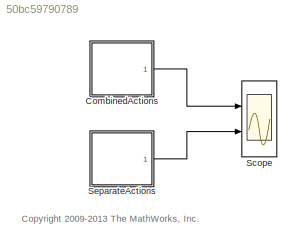
MODEL slx_50bc59790789
KIND model
CONFIG AbsTol = auto
CONFIG EnableMultiTasking = on
CONFIG FixedStep = auto
CONFIG MaxStep = auto
CONFIG MinStep = auto
CONFIG RelTol = 1e-3
CONFIG SampleTimeConstraint = Unconstrained
CONFIG Solver = FixedStepDiscrete
CONFIG SolverName = FixedStepDiscrete
CONFIG StartTime = 0.0
CONFIG StopTime = 5.0
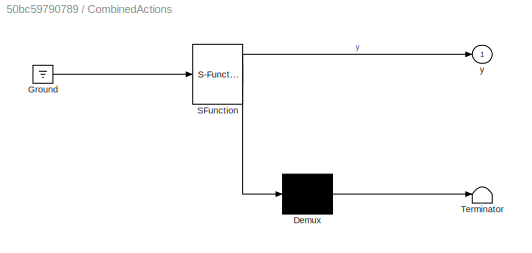
BLOCK [SubSystem] CombinedActions
  ErrorFcn = Stateflow.Translate.translate
  PermitHierarchicalResolution = ExplicitOnly
  Ports = [0, 1]
  RequestExecContextInheritance = off
  SFBlockType = Chart
  TreatAsAtomicUnit = on
  Variant = off
BLOCK [Demux] CombinedActions/ Demux 
  Outputs = 1
  Ports = [1, 1]
BLOCK [Ground] CombinedActions/ Ground 
BLOCK [S-Function] CombinedActions/ SFunction 
  EnableBusSupport = off
  FunctionName = sf_sfun
  PortCounts = [1 2]
  Ports = [1, 2]
  SFcnIsStateOwnerBlock = off
  SFunctionDeploymentMode = off
  Tag = Stateflow S-Function sf_combined_state_actions 1
BLOCK [Terminator] CombinedActions/ Terminator 
BLOCK [Outport] CombinedActions/y
  IconDisplay = Port number
BLOCK [Scope] Scope
  NumInputPorts = 2
  Ports = [2]
  ScopeSpecificationString = Simulink.scopes.TimeScopeBlockCfg('CurrentConfiguration', extmgr.ConfigurationSet(extmgr.Configuration('Core','General UI',true),extmgr.Configuration('Core','Source UI',true),extmgr.Configuration('Sources','WiredSimulink',true,'DataLoggingSaveFormat','StructureWithTime','DataLoggingLimitDataPoints',true,'DataLoggingDecimation','1'),extmgr.Configuration('Visuals','Time Domain',true,'SerializedDispl...<+2428ch>
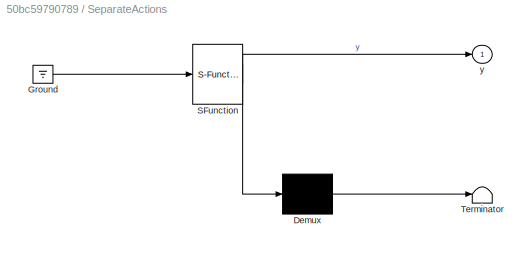
BLOCK [SubSystem] SeparateActions
  ErrorFcn = Stateflow.Translate.translate
  PermitHierarchicalResolution = ExplicitOnly
  Ports = [0, 1]
  RequestExecContextInheritance = off
  SFBlockType = Chart
  TreatAsAtomicUnit = on
  Variant = off
BLOCK [Demux] SeparateActions/ Demux 
  Outputs = 1
  Ports = [1, 1]
BLOCK [Ground] SeparateActions/ Ground 
BLOCK [S-Function] SeparateActions/ SFunction 
  EnableBusSupport = off
  FunctionName = sf_sfun
  PortCounts = [1 2]
  Ports = [1, 2]
  SFcnIsStateOwnerBlock = off
  SFunctionDeploymentMode = off
  Tag = Stateflow S-Function sf_combined_state_actions 2
BLOCK [Terminator] SeparateActions/ Terminator 
BLOCK [Outport] SeparateActions/y
  IconDisplay = Port number
ANNOTATION (root): <copyright redacted>
LINE CombinedActions:1 -> Scope:1
LINE SeparateActions:1 -> Scope:2
CHART CombinedActions states=2 transitions=2
  STATE_LABEL 'A\nen: y=0;\nen, du: y++;'
  STATE_LABEL 'B'
CHART SeparateActions states=2 transitions=2
  STATE_LABEL 'A\nen: y=0;\nen: y++;\ndu: y++;'
  STATE_LABEL 'B'
